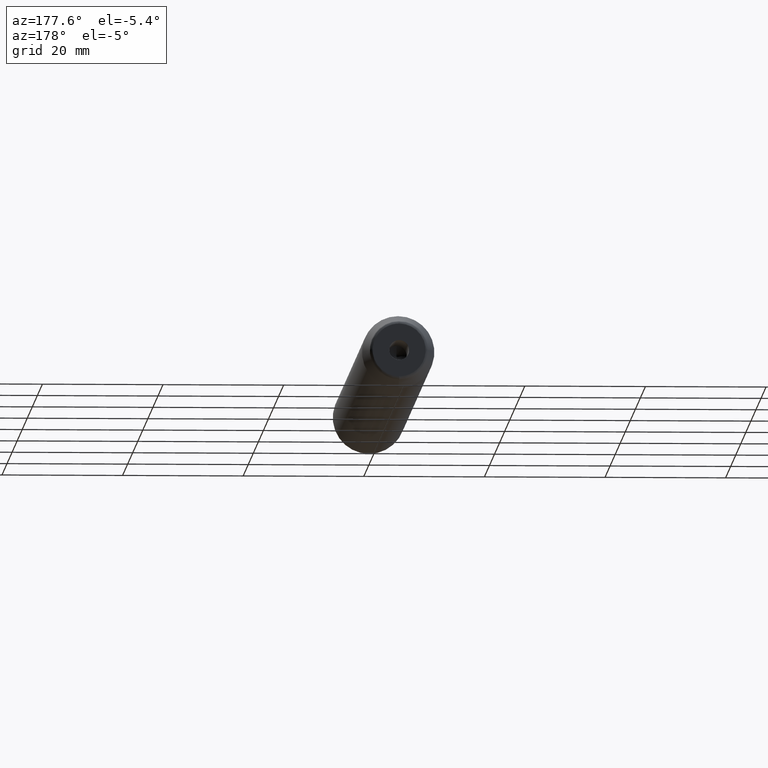
[diagram: clean part render]
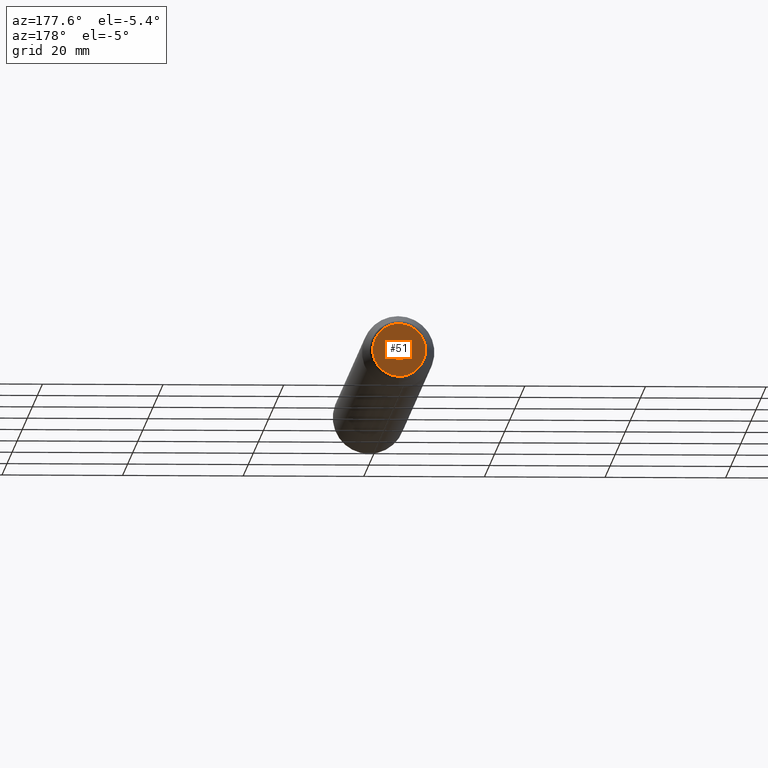
[diagram: same view with one face highlighted and labeled with its STEP entity id]
A machine part, auxiliary view. The second image highlights one B-rep face of the part: STEP entity #51.
In plain terms, the highlighted planar face has unit normal (0, 1, 0).
Its self-contained STEP definition (entity closure, byte-faithful):
#5 = PLANE ( 'NONE',  #108 ) ;
#8 = AXIS2_PLACEMENT_3D ( 'NONE', #116, #299, #20 ) ;
#13 = CARTESIAN_POINT ( 'NONE',  ( 0.000000000000000000, 120.0000000000000000, 1.649999999999998579 ) ) ;
#18 = CARTESIAN_POINT ( 'NONE',  ( 5.483787781522369726E-16, 120.0000000000000000, -4.382404543304999400 ) ) ;
#20 = DIRECTION ( 'NONE',  ( 0.000000000000000000, 0.000000000000000000, 1.000000000000000000 ) ) ;
#42 = VERTEX_POINT ( 'NONE', #13 ) ;
#51 = ADVANCED_FACE ( 'NONE', ( #202, #161 ), #5, .T. ) ;
#53 = CARTESIAN_POINT ( 'NONE',  ( 0.000000000000000000, 120.0000000000000000, 0.000000000000000000 ) ) ;
#60 = CARTESIAN_POINT ( 'NONE',  ( -8.764809086609997024, 120.0000000000000142, -4.382404543305000288 ) ) ;
#64 = CARTESIAN_POINT ( 'NONE',  ( 5.483787781522369726E-16, 120.0000000000000000, -4.382404543304999400 ) ) ;
#78 = EDGE_CURVE ( 'NONE', #125, #205, #263, .T. ) ;
#86 = CARTESIAN_POINT ( 'NONE',  ( 0.000000000000000000, 120.0000000000000000, 4.382404543304999400 ) ) ;
#88 = CARTESIAN_POINT ( 'NONE',  ( 8.764809086609997024, 120.0000000000000142, 4.382404543304999400 ) ) ;
#104 = DIRECTION ( 'NONE',  ( 0.000000000000000000, 1.000000000000000000, 0.000000000000000000 ) ) ;
#106 = ORIENTED_EDGE ( 'NONE', *, *, #131, .F. ) ;
#108 = AXIS2_PLACEMENT_3D ( 'NONE', #53, #104, #154 ) ;
#116 = CARTESIAN_POINT ( 'NONE',  ( 0.000000000000000000, 120.0000000000000000, 0.000000000000000000 ) ) ;
#125 = VERTEX_POINT ( 'NONE', #167 ) ;
#131 = EDGE_CURVE ( 'NONE', #205, #125, #164, .T. ) ;
#139 = CARTESIAN_POINT ( 'NONE',  ( 0.000000000000000000, 120.0000000000000000, 4.382404543304999400 ) ) ;
#154 = DIRECTION ( 'NONE',  ( 0.000000000000000000, -0.000000000000000000, 1.000000000000000000 ) ) ;
#161 = FACE_OUTER_BOUND ( 'NONE', #265, .T. ) ;
#164 =( BOUNDED_CURVE ( )  B_SPLINE_CURVE ( 3, ( #139, #231, #60, #64 ),
 .UNSPECIFIED., .F., .T. ) 
 B_SPLINE_CURVE_WITH_KNOTS ( ( 4, 4 ),
 ( 0.000000000000000000, 1.000000000000000000 ),
 .UNSPECIFIED. ) 
 CURVE ( )  GEOMETRIC_REPRESENTATION_ITEM ( )  RATIONAL_B_SPLINE_CURVE ( ( 1.000000000000000000, 0.3333333333333333703, 0.3333333333333333703, 1.000000000000000000 ) ) 
 REPRESENTATION_ITEM ( '' )  );
#167 = CARTESIAN_POINT ( 'NONE',  ( 5.483787781522369726E-16, 120.0000000000000000, -4.382404543304999400 ) ) ;
#177 = ORIENTED_EDGE ( 'NONE', *, *, #218, .T. ) ;
#183 = EDGE_LOOP ( 'NONE', ( #177 ) ) ;
#192 = CARTESIAN_POINT ( 'NONE',  ( 0.000000000000000000, 120.0000000000000000, 4.382404543304999400 ) ) ;
#202 = FACE_BOUND ( 'NONE', #183, .T. ) ;
#205 = VERTEX_POINT ( 'NONE', #86 ) ;
#218 = EDGE_CURVE ( 'NONE', #42, #42, #281, .T. ) ;
#231 = CARTESIAN_POINT ( 'NONE',  ( -8.764809086609997024, 120.0000000000000142, 4.382404543304999400 ) ) ;
#263 =( BOUNDED_CURVE ( )  B_SPLINE_CURVE ( 3, ( #18, #274, #88, #192 ),
 .UNSPECIFIED., .F., .T. ) 
 B_SPLINE_CURVE_WITH_KNOTS ( ( 4, 4 ),
 ( 0.000000000000000000, 1.000000000000000000 ),
 .UNSPECIFIED. ) 
 CURVE ( )  GEOMETRIC_REPRESENTATION_ITEM ( )  RATIONAL_B_SPLINE_CURVE ( ( 1.000000000000000000, 0.3333333333333333703, 0.3333333333333333703, 1.000000000000000000 ) ) 
 REPRESENTATION_ITEM ( '' )  );
#265 = EDGE_LOOP ( 'NONE', ( #286, #106 ) ) ;
#274 = CARTESIAN_POINT ( 'NONE',  ( 8.764809086609997024, 120.0000000000000142, -4.382404543304998512 ) ) ;
#281 = CIRCLE ( 'NONE', #8, 1.649999999999998579 ) ;
#286 = ORIENTED_EDGE ( 'NONE', *, *, #78, .F. ) ;
#299 = DIRECTION ( 'NONE',  ( -0.000000000000000000, -1.000000000000000000, -0.000000000000000000 ) ) ;